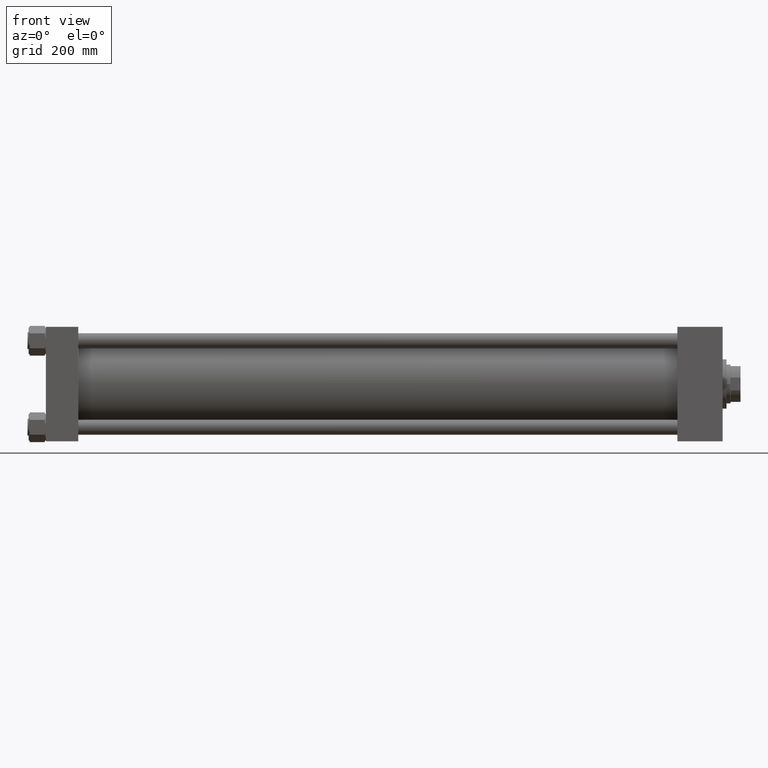
[diagram: clean part render]
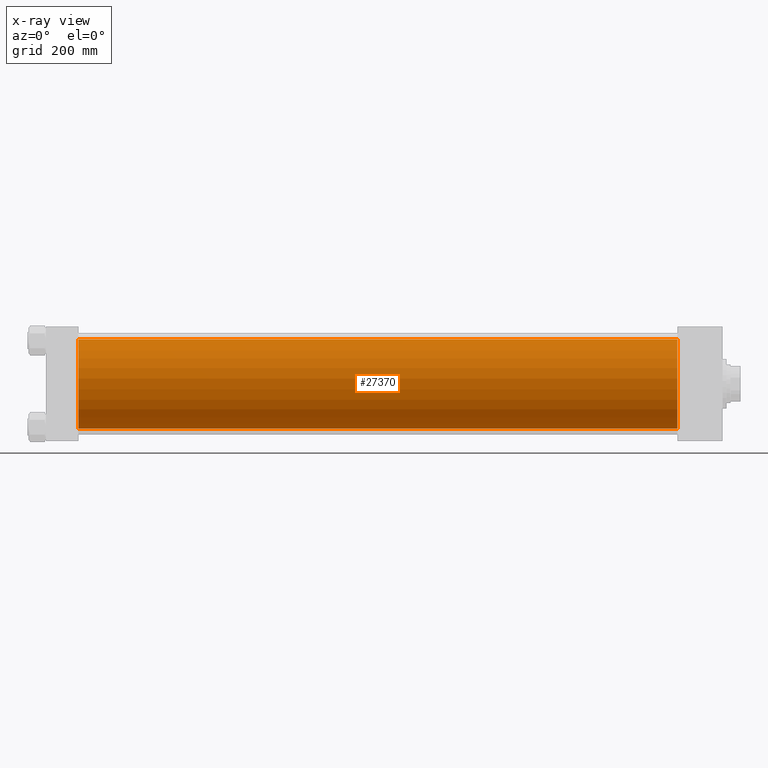
[diagram: x-ray — body ghosted, one internal face saturated and labeled with its STEP entity id]
A machine part, front view, then the same camera in x-ray: the body is ghosted and one INTERNAL B-rep face — a face not visible from any outside direction — is saturated and labeled: STEP entity #27370.
In plain terms, the highlighted cylindrical surface (partial cylindrical patch) has radius 80 mm, axis along (-1, -0, -0).
Its self-contained STEP definition (entity closure, byte-faithful):
#563 = DIRECTION ( 'NONE',  ( -1.000000000000000000, -0.000000000000000000, -0.000000000000000000 ) ) ;
#653 = CARTESIAN_POINT ( 'NONE',  ( 1131.000000000000000, -2.602085213965210642E-15, 0.000000000000000000 ) ) ;
#1047 = CARTESIAN_POINT ( 'NONE',  ( 58.00000000000000000, 7.195089179213615410E-15, -80.00000000000000000 ) ) ;
#1732 = DIRECTION ( 'NONE',  ( 1.000000000000000000, 0.000000000000000000, 0.000000000000000000 ) ) ;
#1981 = DIRECTION ( 'NONE',  ( 0.000000000000000000, 0.000000000000000000, -1.000000000000000000 ) ) ;
#4247 = VECTOR ( 'NONE', #563, 1000.000000000000000 ) ;
#4757 = DIRECTION ( 'NONE',  ( 0.000000000000000000, 0.000000000000000000, 1.000000000000000000 ) ) ;
#4840 = DIRECTION ( 'NONE',  ( 0.000000000000000000, 0.000000000000000000, -1.000000000000000000 ) ) ;
#5119 = CIRCLE ( 'NONE', #42006, 80.00000000000000000 ) ;
#9303 = AXIS2_PLACEMENT_3D ( 'NONE', #653, #20421, #4757 ) ;
#9621 = AXIS2_PLACEMENT_3D ( 'NONE', #49177, #1732, #1981 ) ;
#10526 = CARTESIAN_POINT ( 'NONE',  ( 1131.000000000000000, 7.195089179213615410E-15, -80.00000000000000000 ) ) ;
#11475 = VECTOR ( 'NONE', #20264, 1000.000000000000000 ) ;
#15373 = EDGE_CURVE ( 'NONE', #31402, #18790, #24121, .T. ) ;
#15464 = ORIENTED_EDGE ( 'NONE', *, *, #15373, .F. ) ;
#15823 = FACE_OUTER_BOUND ( 'NONE', #16457, .T. ) ;
#16040 = ORIENTED_EDGE ( 'NONE', *, *, #41634, .F. ) ;
#16457 = EDGE_LOOP ( 'NONE', ( #49840, #25183, #16040, #15464 ) ) ;
#18790 = VERTEX_POINT ( 'NONE', #37076 ) ;
#20264 = DIRECTION ( 'NONE',  ( -1.000000000000000000, -0.000000000000000000, -0.000000000000000000 ) ) ;
#20421 = DIRECTION ( 'NONE',  ( -1.000000000000000000, -0.000000000000000000, -0.000000000000000000 ) ) ;
#21103 = LINE ( 'NONE', #32160, #4247 ) ;
#23207 = EDGE_CURVE ( 'NONE', #40723, #44368, #21103, .T. ) ;
#23906 = CARTESIAN_POINT ( 'NONE',  ( 1131.000000000000000, -2.602085213965210642E-15, 80.00000000000000000 ) ) ;
#24121 = LINE ( 'NONE', #39748, #11475 ) ;
#25183 = ORIENTED_EDGE ( 'NONE', *, *, #23207, .T. ) ;
#25791 = EDGE_CURVE ( 'NONE', #31402, #40723, #5119, .T. ) ;
#27370 = ADVANCED_FACE ( 'NONE', ( #15823 ), #35822, .F. ) ;
#31402 = VERTEX_POINT ( 'NONE', #23906 ) ;
#32160 = CARTESIAN_POINT ( 'NONE',  ( 1131.000000000000000, 7.195089179213615410E-15, -80.00000000000000000 ) ) ;
#35822 = CYLINDRICAL_SURFACE ( 'NONE', #9303, 80.00000000000000000 ) ;
#37076 = CARTESIAN_POINT ( 'NONE',  ( 58.00000000000000000, -2.602085213965210642E-15, 80.00000000000000000 ) ) ;
#39748 = CARTESIAN_POINT ( 'NONE',  ( 1131.000000000000000, -2.602085213965210642E-15, 80.00000000000000000 ) ) ;
#39999 = CARTESIAN_POINT ( 'NONE',  ( 1131.000000000000000, -2.602085213965210642E-15, 0.000000000000000000 ) ) ;
#40723 = VERTEX_POINT ( 'NONE', #10526 ) ;
#41634 = EDGE_CURVE ( 'NONE', #18790, #44368, #49747, .T. ) ;
#42006 = AXIS2_PLACEMENT_3D ( 'NONE', #39999, #44094, #4840 ) ;
#44094 = DIRECTION ( 'NONE',  ( 1.000000000000000000, 0.000000000000000000, 0.000000000000000000 ) ) ;
#44368 = VERTEX_POINT ( 'NONE', #1047 ) ;
#49177 = CARTESIAN_POINT ( 'NONE',  ( 58.00000000000000000, -2.602085213965210642E-15, 0.000000000000000000 ) ) ;
#49747 = CIRCLE ( 'NONE', #9621, 80.00000000000000000 ) ;
#49840 = ORIENTED_EDGE ( 'NONE', *, *, #25791, .T. ) ;